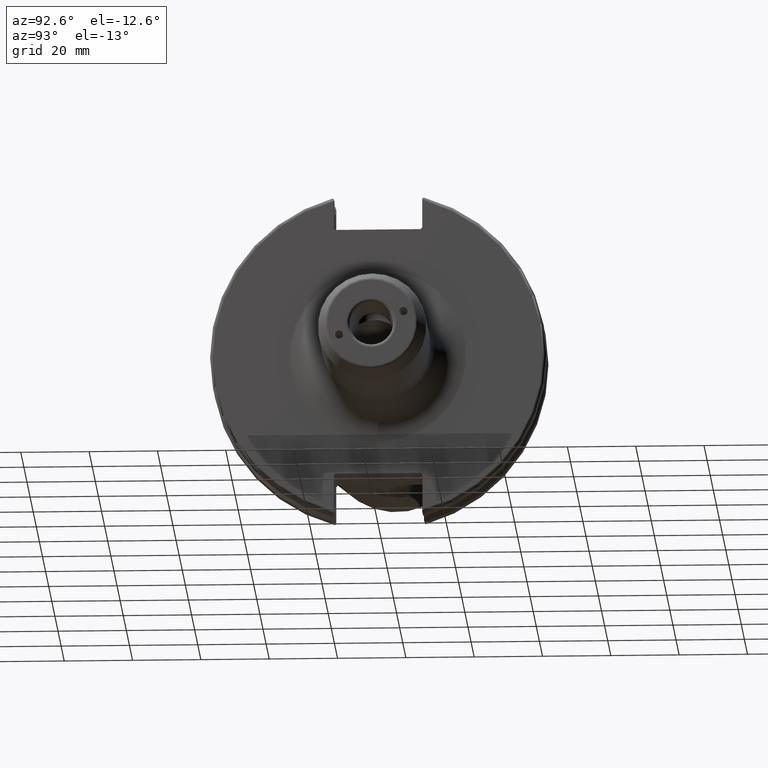
[diagram: clean part render]
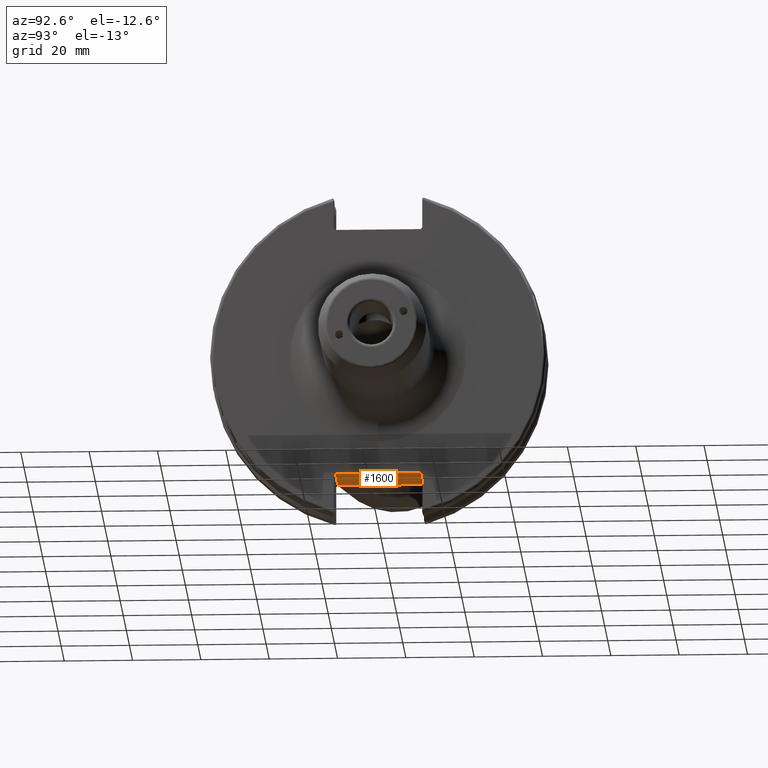
[diagram: same view with one face highlighted and labeled with its STEP entity id]
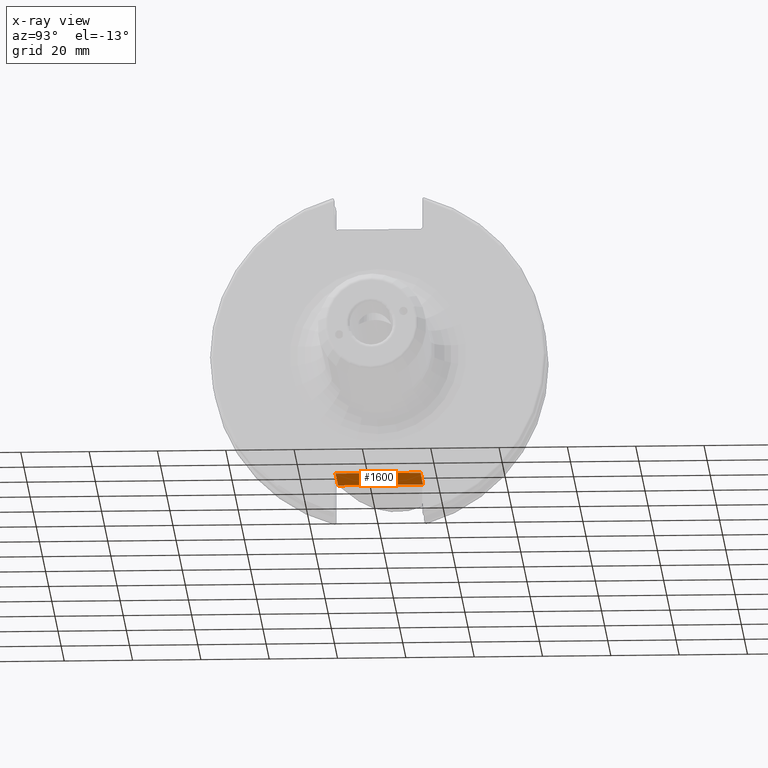
[diagram: x-ray of the same camera — body ghosted, the highlighted face saturated]
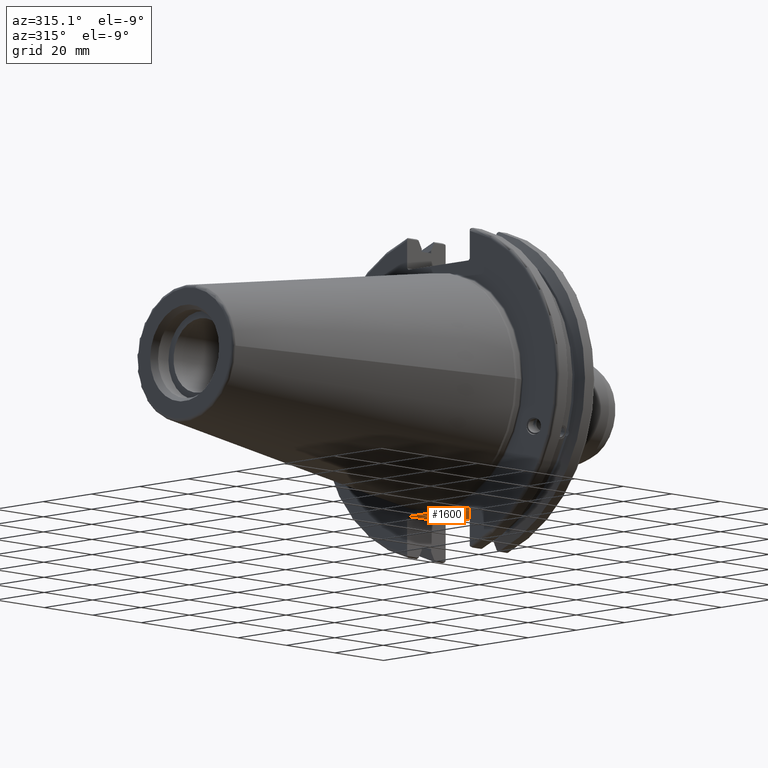
[diagram: same view with one face highlighted and labeled with its STEP entity id]
A machine part, auxiliary view. The second image highlights one B-rep face of the part: STEP entity #1600.
The next image is the same camera in x-ray: the body ghosted, the highlighted face saturated — about 0% of this face is hidden behind the body in this view.
A second angle (auxiliary view) of the same face is appended — the face is thin or edge-on in the first view.
In plain terms, the highlighted planar face has unit normal (0, 0, 1).
Its self-contained STEP definition (entity closure, byte-faithful):
#100=PLANE('',#1781);
#253=FACE_OUTER_BOUND('',#363,.T.);
#363=EDGE_LOOP('',(#1389,#1390,#1391,#1392));
#454=LINE('',#2520,#549);
#494=LINE('',#3095,#589);
#518=LINE('',#3313,#613);
#519=LINE('',#3315,#614);
#549=VECTOR('',#1912,10.);
#589=VECTOR('',#2080,10.);
#613=VECTOR('',#2162,10.);
#614=VECTOR('',#2165,10.);
#669=VERTEX_POINT('',#2517);
#670=VERTEX_POINT('',#2519);
#750=VERTEX_POINT('',#3092);
#751=VERTEX_POINT('',#3094);
#842=EDGE_CURVE('',#669,#670,#454,.T.);
#946=EDGE_CURVE('',#750,#751,#494,.T.);
#1004=EDGE_CURVE('',#670,#750,#518,.T.);
#1005=EDGE_CURVE('',#751,#669,#519,.T.);
#1389=ORIENTED_EDGE('',*,*,#1004,.F.);
#1390=ORIENTED_EDGE('',*,*,#842,.F.);
#1391=ORIENTED_EDGE('',*,*,#1005,.F.);
#1392=ORIENTED_EDGE('',*,*,#946,.F.);
#1600=ADVANCED_FACE('',(#253),#100,.F.);
#1781=AXIS2_PLACEMENT_3D('',#3314,#2163,#2164);
#1912=DIRECTION('',(0.,1.,0.));
#2080=DIRECTION('',(0.,-1.,0.));
#2162=DIRECTION('',(-1.,2.63163976207444E-16,0.));
#2163=DIRECTION('center_axis',(0.,0.,1.));
#2164=DIRECTION('ref_axis',(1.,0.,0.));
#2165=DIRECTION('',(1.,2.63163976207445E-16,0.));
#2517=CARTESIAN_POINT('',(19.05,-12.45,-35.306));
#2519=CARTESIAN_POINT('',(19.05,12.45,-35.306));
#2520=CARTESIAN_POINT('',(19.05,-3.33066907387547E-15,-35.306));
#3092=CARTESIAN_POINT('',(3.175,12.45,-35.306));
#3094=CARTESIAN_POINT('',(3.175,-12.45,-35.306));
#3095=CARTESIAN_POINT('',(3.175,24.60625,-35.306));
#3313=CARTESIAN_POINT('',(10.63125,12.45,-35.306));
#3314=CARTESIAN_POINT('Origin',(18.0875,-6.66133814775094E-15,-35.306));
#3315=CARTESIAN_POINT('',(19.06875,-12.45,-35.306));